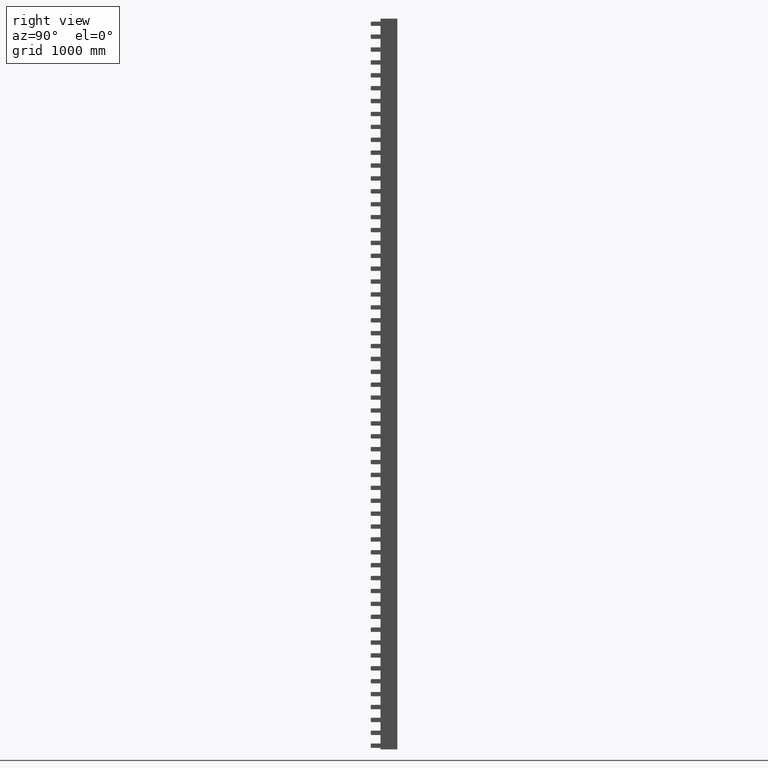
[diagram: clean part render]
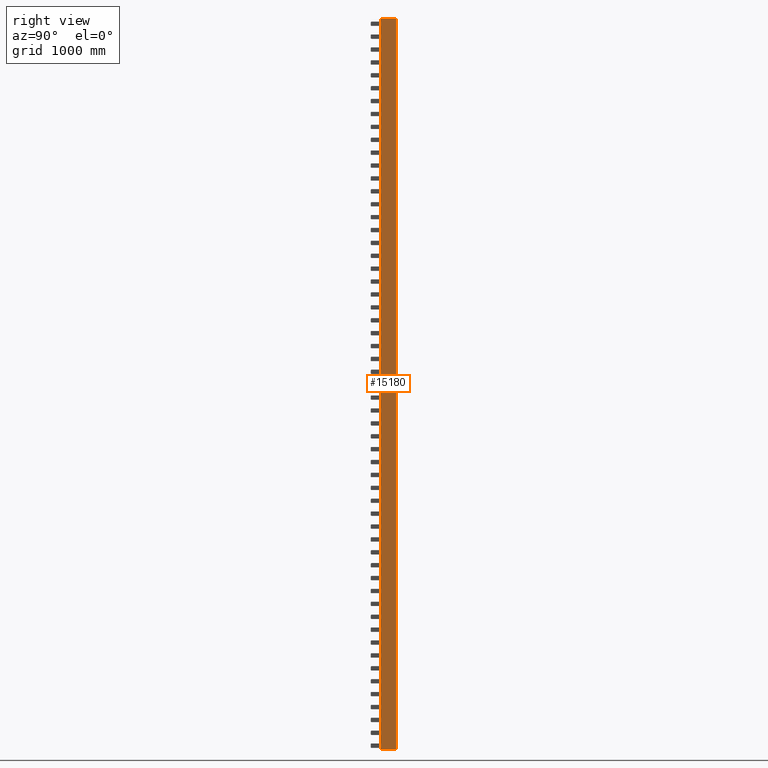
[diagram: same view with one face highlighted and labeled with its STEP entity id]
A machine part, right view. The second image highlights one B-rep face of the part: STEP entity #15180.
In plain terms, the highlighted planar face has unit normal (1, 0, 0).
Its self-contained STEP definition (entity closure, byte-faithful):
#14973=CARTESIAN_POINT('',(6910.0208871467676,6266.4066631202195,-10000.0));
#14974=VERTEX_POINT('',#14973);
#14982=CARTESIAN_POINT('',(6910.0208871468158,6049.4066631202577,-10000.0));
#14983=VERTEX_POINT('',#14982);
#14984=CARTESIAN_POINT('',(6910.020887146813,6049.4066631202577,-10000.0));
#14985=DIRECTION('',(-2.179434E-013,1.0,0.0));
#14986=VECTOR('',#14985,216.99999999996271);
#14987=LINE('',#14984,#14986);
#14988=EDGE_CURVE('',#14983,#14974,#14987,.T.);
#15006=CARTESIAN_POINT('',(6910.020887146813,6049.4066631202577,90.0));
#15007=VERTEX_POINT('',#15006);
#15015=CARTESIAN_POINT('',(6910.0208871467676,6266.4066631202195,90.0));
#15016=VERTEX_POINT('',#15015);
#15017=CARTESIAN_POINT('',(6910.0208871467676,6266.4066631202195,90.0));
#15018=DIRECTION('',(2.095610E-013,-1.0,0.0));
#15019=VECTOR('',#15018,216.99999999996271);
#15020=LINE('',#15017,#15019);
#15021=EDGE_CURVE('',#15016,#15007,#15020,.T.);
#15080=CARTESIAN_POINT('',(6910.0208871467676,6266.4066631202195,90.0));
#15081=DIRECTION('',(0.0,0.0,-1.0));
#15082=VECTOR('',#15081,10090.0);
#15083=LINE('',#15080,#15082);
#15084=EDGE_CURVE('',#15016,#14974,#15083,.T.);
#15146=CARTESIAN_POINT('',(6910.0208871468158,6049.4066631202577,-10000.0));
#15147=DIRECTION('',(0.0,0.0,1.0));
#15148=VECTOR('',#15147,10090.0);
#15149=LINE('',#15146,#15148);
#15150=EDGE_CURVE('',#14983,#15007,#15149,.T.);
#15169=CARTESIAN_POINT('',(6910.0208871468158,6046.4066631202568,0.0));
#15170=DIRECTION('',(1.0,2.162521E-013,0.0));
#15171=DIRECTION('',(0.0,0.0,-1.0));
#15172=AXIS2_PLACEMENT_3D('',#15169,#15170,#15171);
#15173=PLANE('',#15172);
#15174=ORIENTED_EDGE('',*,*,#15084,.F.);
#15175=ORIENTED_EDGE('',*,*,#15021,.T.);
#15176=ORIENTED_EDGE('',*,*,#15150,.F.);
#15177=ORIENTED_EDGE('',*,*,#14988,.T.);
#15178=EDGE_LOOP('',(#15174,#15175,#15176,#15177));
#15179=FACE_OUTER_BOUND('',#15178,.T.);
#15180=ADVANCED_FACE('',(#15179),#15173,.T.);